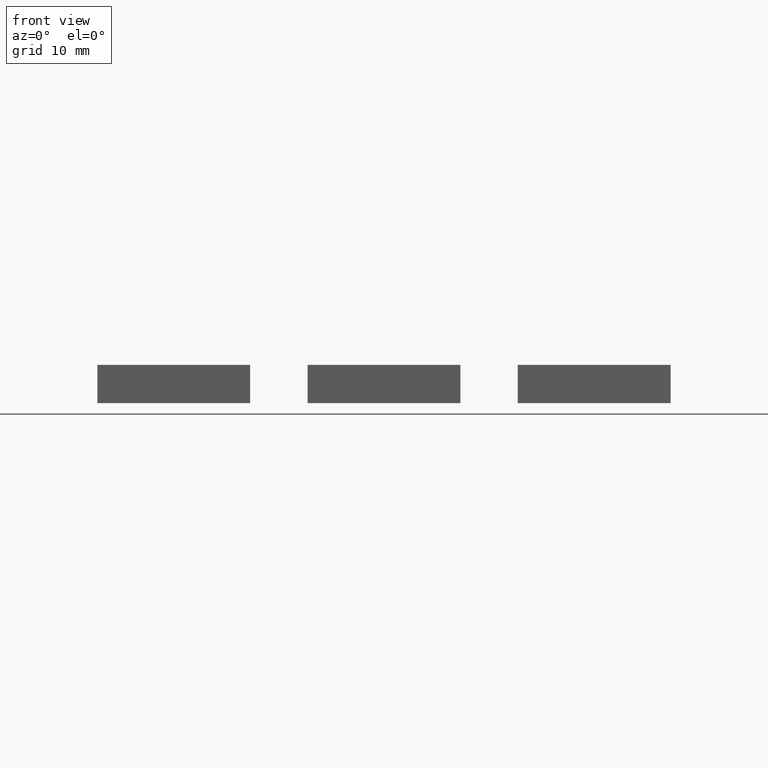
[diagram: clean part render]
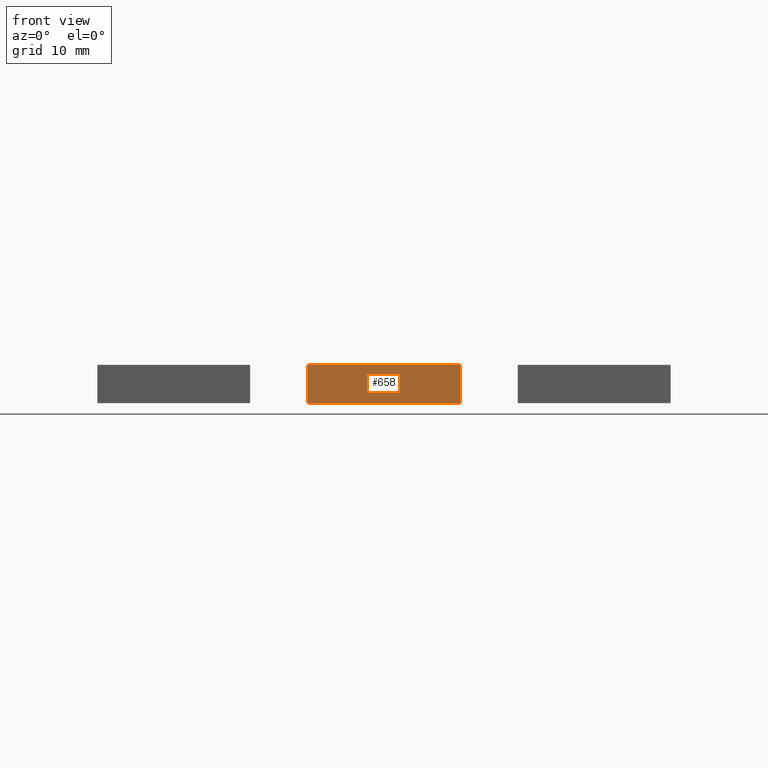
[diagram: same view with one face highlighted and labeled with its STEP entity id]
A machine part, front view. The second image highlights one B-rep face of the part: STEP entity #658.
In plain terms, the highlighted planar face has unit normal (0, -1, 0).
Its self-contained STEP definition (entity closure, byte-faithful):
#124=ORIENTED_EDGE('',*,*,#253,.F.);
#125=ORIENTED_EDGE('',*,*,#255,.F.);
#126=ORIENTED_EDGE('',*,*,#238,.T.);
#127=ORIENTED_EDGE('',*,*,#234,.T.);
#234=EDGE_CURVE('',#313,#312,#384,.T.);
#238=EDGE_CURVE('',#316,#313,#388,.T.);
#253=EDGE_CURVE('',#329,#312,#403,.T.);
#255=EDGE_CURVE('',#316,#329,#405,.T.);
#312=VERTEX_POINT('',#996);
#313=VERTEX_POINT('',#998);
#316=VERTEX_POINT('',#1006);
#329=VERTEX_POINT('',#1034);
#384=LINE('',#997,#474);
#388=LINE('',#1005,#478);
#403=LINE('',#1035,#493);
#405=LINE('',#1038,#495);
#474=VECTOR('',#819,1.);
#478=VECTOR('',#825,1.);
#493=VECTOR('',#842,1.);
#495=VECTOR('',#846,1.);
#546=EDGE_LOOP('',(#124,#125,#126,#127));
#584=FACE_BOUND('',#546,.T.);
#622=PLANE('',#730);
#658=ADVANCED_FACE('',(#584),#622,.T.);
#730=AXIS2_PLACEMENT_3D('',#1043,#853,#854);
#819=DIRECTION('',(0.,0.,-1.));
#825=DIRECTION('',(-1.,0.,0.));
#842=DIRECTION('',(-1.,0.,0.));
#846=DIRECTION('',(0.,0.,-1.));
#853=DIRECTION('',(0.,-1.,0.));
#854=DIRECTION('',(0.,0.,-1.));
#996=CARTESIAN_POINT('',(0.02102,-0.03556,0.));
#997=CARTESIAN_POINT('',(0.02102,-0.03556,0.006));
#998=CARTESIAN_POINT('',(0.02102,-0.03556,0.006));
#1005=CARTESIAN_POINT('',(0.03302,-0.03556,0.006));
#1006=CARTESIAN_POINT('',(0.04502,-0.03556,0.006));
#1034=CARTESIAN_POINT('',(0.04502,-0.03556,0.));
#1035=CARTESIAN_POINT('',(0.03302,-0.03556,0.));
#1038=CARTESIAN_POINT('',(0.04502,-0.03556,0.006));
#1043=CARTESIAN_POINT('',(0.03302,-0.03556,0.006));